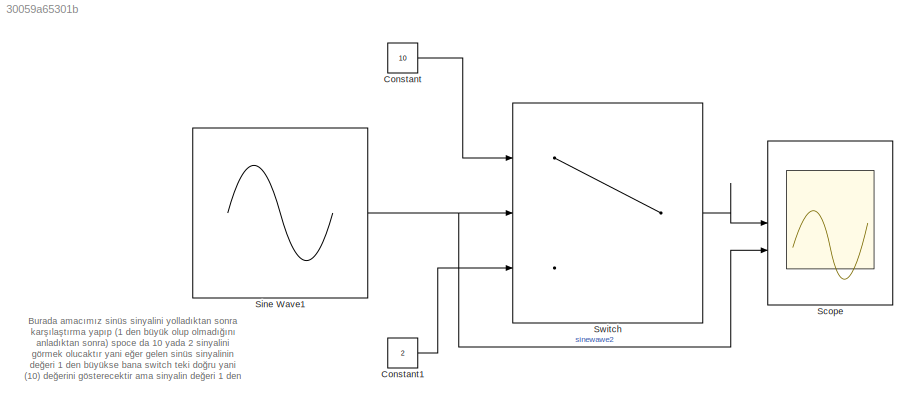
MODEL slx_30059a65301b
KIND model
CONFIG AbsTol = auto
CONFIG EnableMultiTasking = off
CONFIG FixedStep = auto
CONFIG MaxStep = 0.01
CONFIG MinStep = auto
CONFIG RelTol = 1e-3
CONFIG SampleTimeConstraint = Unconstrained
CONFIG SolverName = VariableStepAuto
CONFIG StartTime = 0.0
CONFIG StopTime = 10.0
BLOCK [Constant] Constant
  Value = 10
BLOCK [Constant] Constant1
  Value = 2
BLOCK [Scope] Scope
  Floating = off
  NumInputPorts = 2
  ScopeSpecificationString = Simulink.scopes.TimeScopeBlockCfg('CurrentConfiguration', extmgr.ConfigurationSet(extmgr.Configuration('Core','General UI',true),extmgr.Configuration('Core','Source UI',true),extmgr.Configuration('Sources','WiredSimulink',true),extmgr.Configuration('Visuals','Time Domain',true,'SerializedDisplays',{struct('MinYLimReal','-3.49996','MaxYLimReal','11.5','YLabelReal','','MinYLimMag','0.00000','MaxYLim...<+1492ch>
BLOCK [Sin] Sine Wave1
  Amplitude = 2
  Frequency = 5
  SampleTime = 0
BLOCK [Switch] Switch
  Criteria = u2 > Threshold
  InputSameDT = off
  SaturateOnIntegerOverflow = off
  Threshold = 1
ANNOTATION (root): Burada amacımız sinüs sinyalini yolladıktan sonra karşılaştırma yapıp (1 den büyük olup olmadığını anladıktan sonra) spoce da 10 yada 2 sinyalini görmek olucaktır yani eğer gelen sinüs sinyalinin değeri 1 den büyükse bana switch teki doğru yani (10) değerini gösterecektir ama sinyalin değeri 1 den küçükse o zaman da 2 değerini gösterecektir
LINE Constant1:1 -> Switch:3
LINE Constant:1 -> Switch:1
NET Sine Wave1:1 -> Scope:2, Switch:2
LINE Switch:1 -> Scope:1
note: NET lines group one-source signal fan-out (src -> all destinations, sorted); 1:1 wires keep LINE
